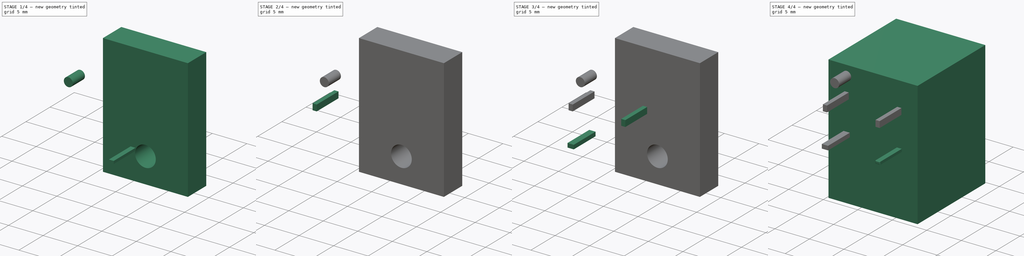
[diagram: build sequence overview — one tinted view per stage of 4, left to right]
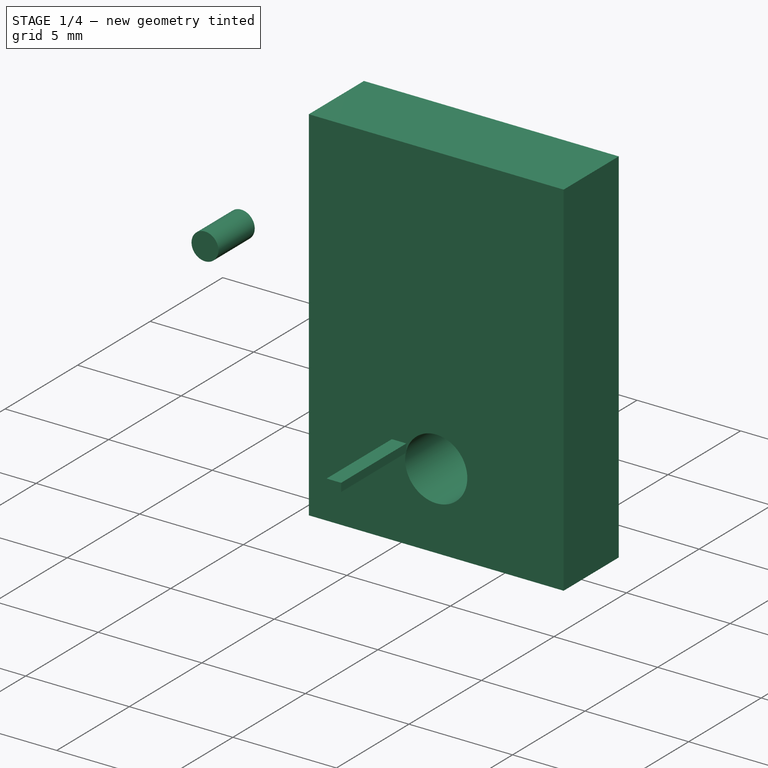
[diagram: stage 1 of 4 — iso view after this stage's code; geometry added in this stage tinted green]
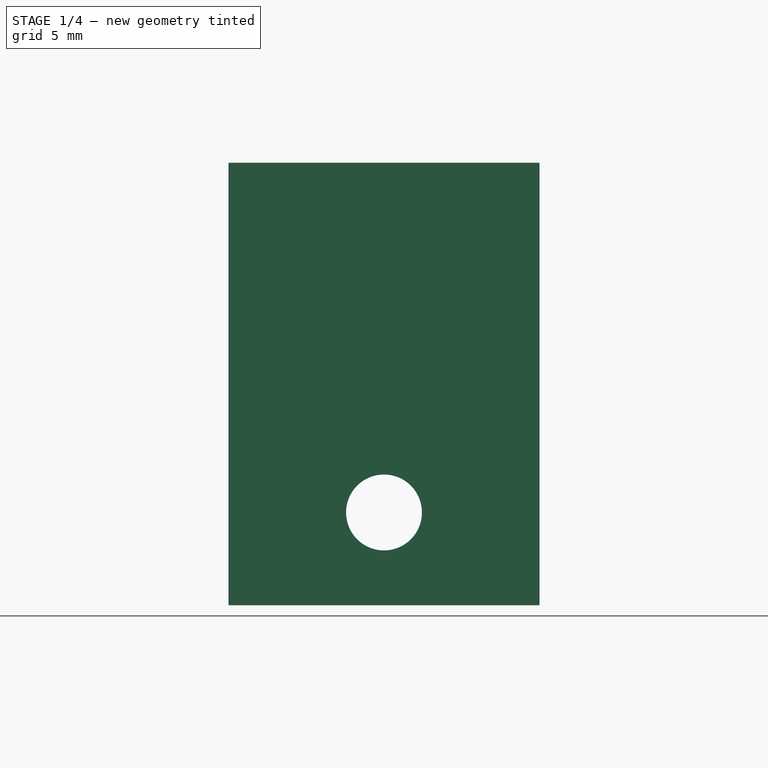
[diagram: stage 1 of 4 — front view after this stage's code; geometry added in this stage tinted green]
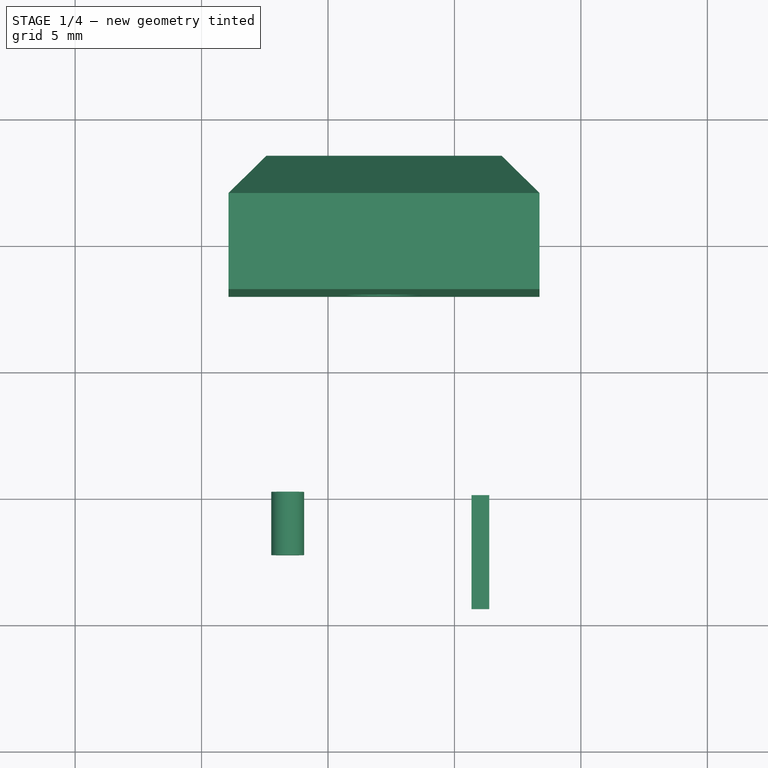
[diagram: stage 1 of 4 — top view after this stage's code; geometry added in this stage tinted green]
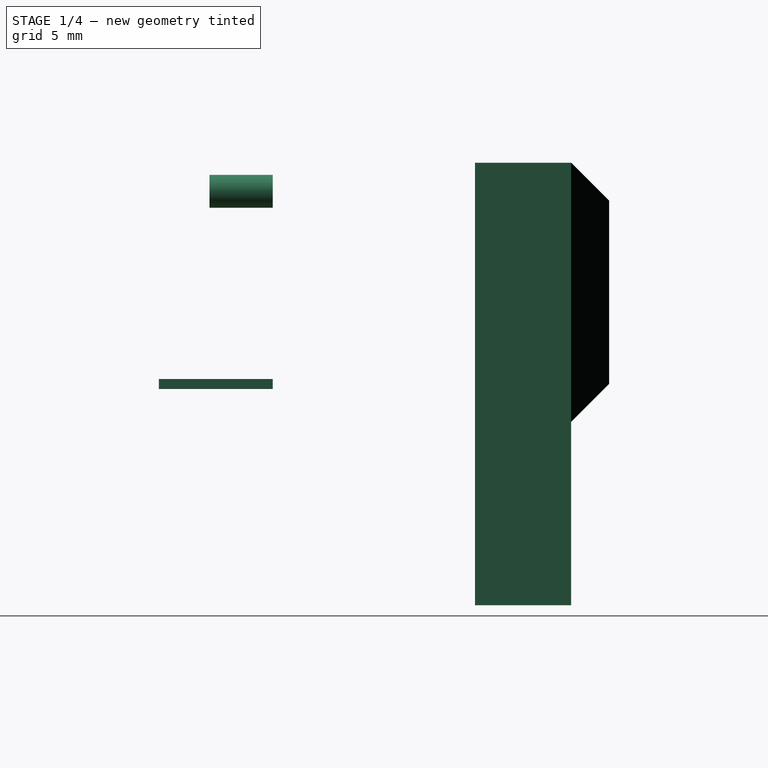
[diagram: stage 1 of 4 — right view after this stage's code; geometry added in this stage tinted green]
FCSTD DOCUMENT  (FreeCAD 0.16R6712 (Git))
Label: digitast
License: All rights reserved
LicenseURL: http://en.wikipedia.org/wiki/All_rights_reserved
objects: Part::FeaturePython×7, Sketcher::SketchObject×4, Part::Extrusion×4, Part::Feature×3, App::DocumentObjectGroup×2, Part::Fillet×1, Part::MultiFuse×1, Part::Part2DObjectPython×1, PartDesign::Pocket×1
note: 23 computed .brp shape members not serialized (recipe doc carries the construction recipe); baked Part::Feature solids carry a one-line shape summary decoded from their .brp

FEATURE [Part::Feature] Part__Feature  label="User Library-digitast_with_Red_led"
  shape: bbox 12.3 x 5.3 x 17.5 mm, 12 faces (baked)
FEATURE [Part::Feature] Part__Feature001  label="User Library-digitast_with_Red_led001"
  shape: bbox 12.3 x 10.5 x 17.5 mm, 12 faces (baked)
FEATURE [Sketcher::SketchObject] Sketch
  ExternalGeometry = -> [Part__Feature001]
  Placement = pos=(0,0,0) rot=(1,0,0;1.5708rad)
  sketch-geometry (6):
    g0: LineSegment [constr] StartX=-8.93554 StartY=4.00865 StartZ=0 EndX=3.36446 EndY=4.00865 EndZ=0
    g1: LineSegment [constr] StartX=1.02446 StartY=-3.61135 StartZ=0 EndX=1.02446 EndY=4.00865 EndZ=0
    g2: LineSegment StartX=0.674465 StartY=4.20865 StartZ=0 EndX=1.37446 EndY=4.20865 EndZ=0
    g3: LineSegment StartX=1.37446 StartY=4.20865 StartZ=0 EndX=1.37446 EndY=3.80865 EndZ=0
    g4: LineSegment StartX=1.37446 StartY=3.80865 StartZ=0 EndX=0.674465 EndY=3.80865 EndZ=0
    g5: LineSegment StartX=0.674465 StartY=3.80865 StartZ=0 EndX=0.674465 EndY=4.20865 EndZ=0
  constraints (20):
    c: Horizontal(g0)
    c: Symmetric(g-9,g-9,g0)
    c: Coincident(g1,g-4)
    c: PointOnObject(g1,g0)
    c: Vertical(g1)
    c: PointOnObject(g0,g-9)
    c: PointOnObject(g0,g-10)
    c: Coincident(g2,g3)
    c: Coincident(g3,g4)
    c: Coincident(g4,g5)
    c: Coincident(g5,g2)
    c: Horizontal(g2)
    c: Horizontal(g4)
    c: Vertical(g3)
    c: Vertical(g5)
    c: DistanceX(g2,g2) = 0.7
    c: DistanceY(g3,g3) = 0.4
    c: Symmetric(g3,g2,g0)
    c: Symmetric(g3,g4,g1)
    c: DistanceX(g-6,g-4) = 7.62
FEATURE [Part::Extrusion] Extrude
  Base = -> Sketch
  Dir = (0,-1,0)
  Solid = true
FEATURE [Part::Part2DObjectPython] Circle  # Draft 2D object (typed FeaturePython)
  FirstAngle = 0
  LastAngle = 0
  MakeFace = false
  MapMode = -1
  Placement = pos=(1.02446,0,-3.61135) rot=(1,0,0;1.5708rad)
  Radius = 0.65
FEATURE [Part::Extrusion] Extrude003  label="PlasticPinPcbHole"
  Base = -> Circle
  Dir = (0,-1,0)
  Solid = true
FEATURE [Part::FeaturePython] Clone006  label="PlasticPinPcbHole001"  # Draft clone (typed FeaturePython)
  AttacherType = Attacher::AttachEngine3D
  Fuse = false
  MapMode = -1
  Objects = -> [Extrude003]
  Placement = pos=(-7.62,0,15.24) rot=(0,0,1;0rad)
  Scale = (1,1,1)
FEATURE [App::DocumentObjectGroup] Group001  label="PcbHoles"
  Group = -> [Extrude002,Clone003,Clone004,Clone005,Extrude003,Clone006]
FEATURE [Sketcher::SketchObject] Sketch004
  ExternalGeometry = -> [Part__Feature]
  Placement = pos=(0,11.8,0) rot=(0,0.707107,0.707107;3.14159rad)
  Support = -> Part__Feature [Face1]
  sketch-geometry (1):
    g0: Circle CenterX=2.78554 CenterY=-1.07135 CenterZ=0 NormalX=0 NormalY=0 NormalZ=1 Radius=1.5
  constraints (2):
    c: Coincident(g-3,g0)
    c: PointOnObject(g-3,g0)
FEATURE [PartDesign::Pocket] Pocket
  Length = 5
  Sketch = -> Sketch004
  Type = 1
FEATURE [Part::Feature] Revolution001  label="Led"
  Placement = pos=(-2.78554,7.3,-1.07135) rot=(0,1,0;1.5708rad)
  shape: bbox 3.4 x 4.5 x 3.4 mm, 5 faces (baked)
FEATURE [App::DocumentObjectGroup] Group  label="Digitast"
  Group = -> [Part__Feature,Part__Feature001,Fusion,Sketch003,Pocket,Revolution001]
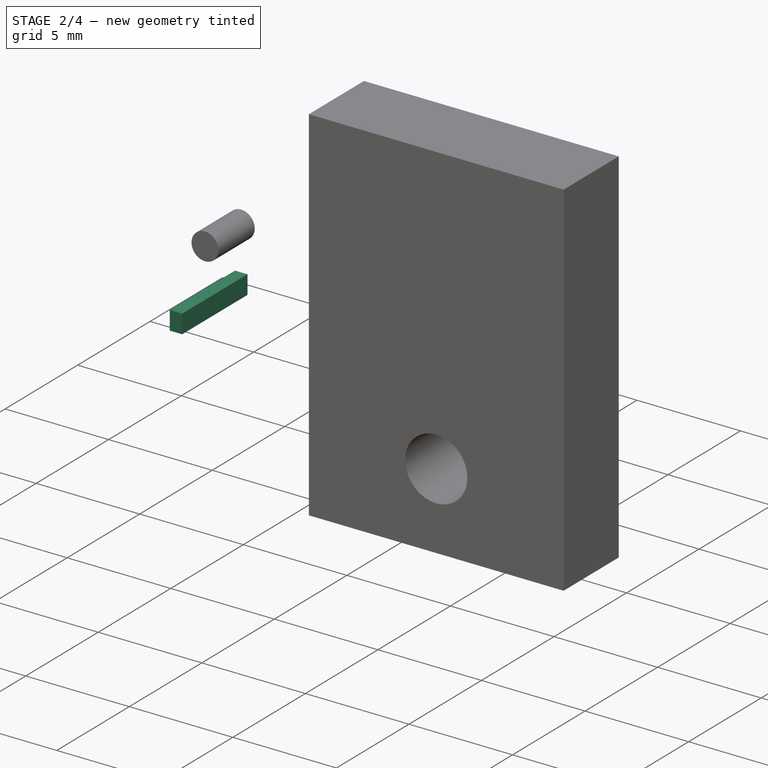
[diagram: stage 2 of 4 — iso view after this stage's code; geometry added in this stage tinted green]
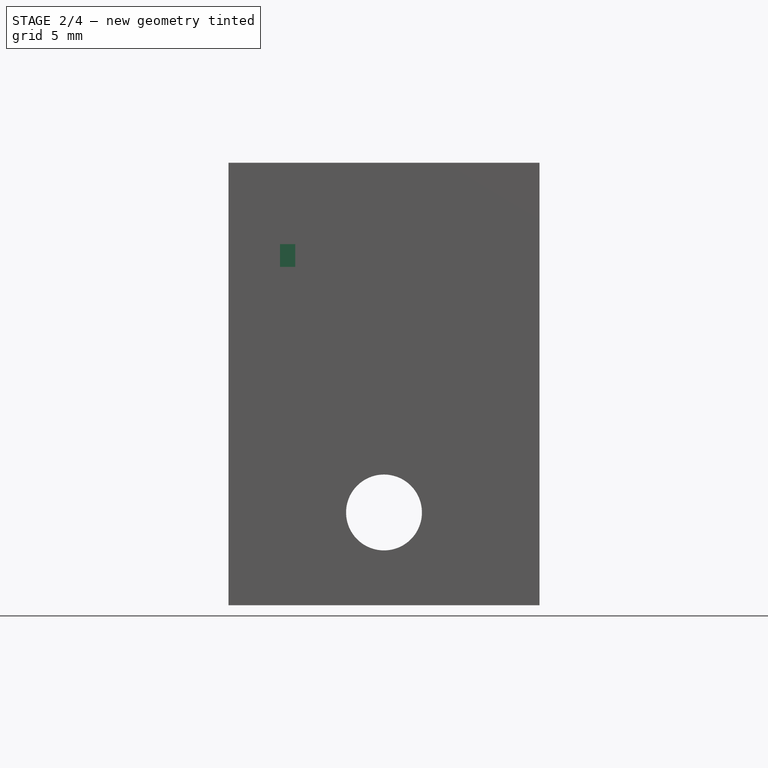
[diagram: stage 2 of 4 — front view after this stage's code; geometry added in this stage tinted green]
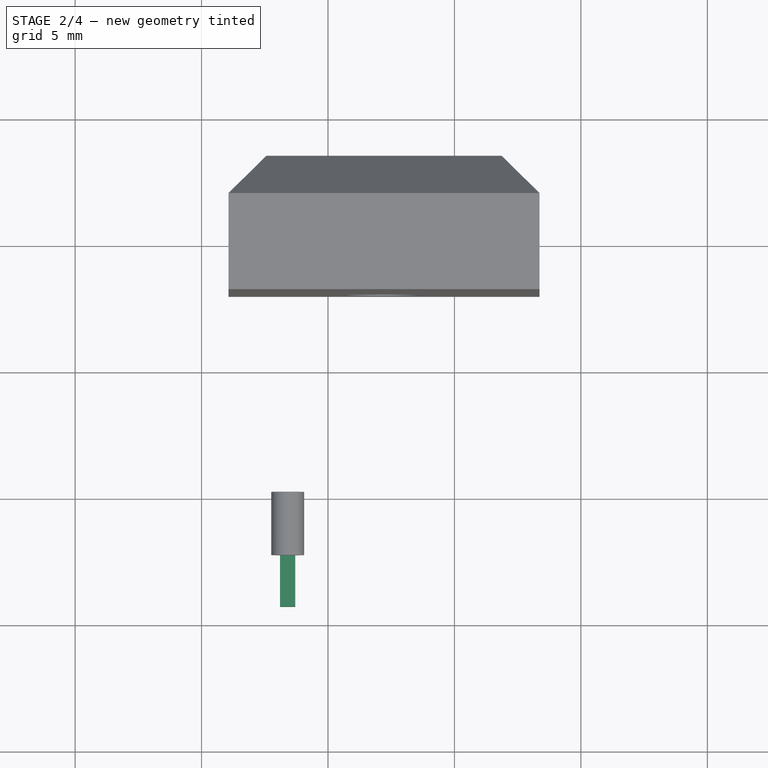
[diagram: stage 2 of 4 — top view after this stage's code; geometry added in this stage tinted green]
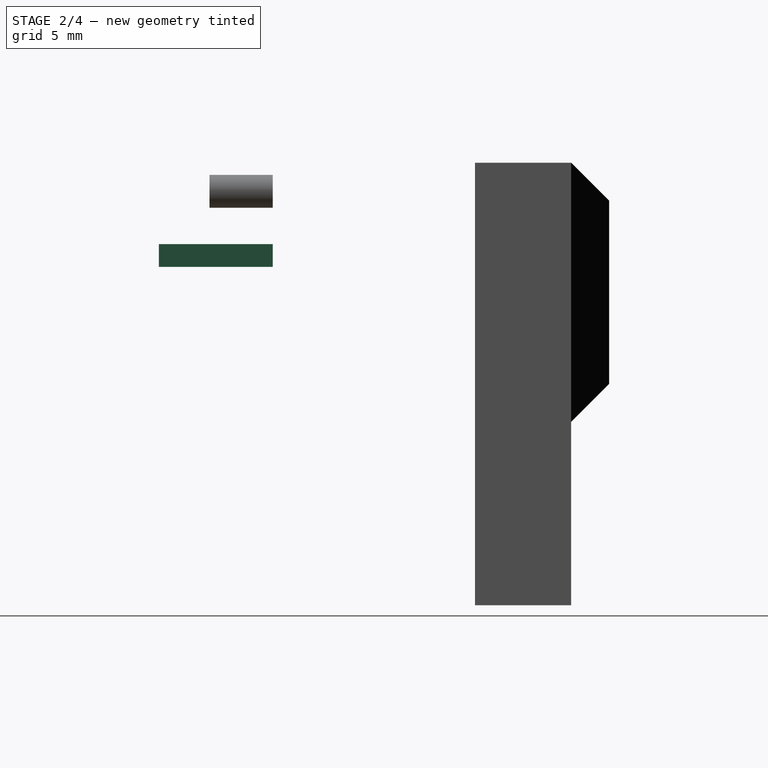
[diagram: stage 2 of 4 — right view after this stage's code; geometry added in this stage tinted green]
FEATURE [Part::Fillet] Fillet
  Base = -> Extrude
  Edges = 4 edges r=0.1: [Edge4,Edge7,Edge10,Edge12]
FEATURE [Sketcher::SketchObject] Sketch003
  ExternalGeometry = -> [Fillet]
  Placement = pos=(0,0,0) rot=(1,0,0;1.5708rad)
  sketch-geometry (4):
    g0: LineSegment StartX=0.574465 StartY=4.30865 StartZ=0 EndX=1.47446 EndY=4.30865 EndZ=0
    g1: LineSegment StartX=1.47446 StartY=4.30865 StartZ=0 EndX=1.47446 EndY=3.70865 EndZ=0
    g2: LineSegment StartX=1.47446 StartY=3.70865 StartZ=0 EndX=0.574465 EndY=3.70865 EndZ=0
    g3: LineSegment StartX=0.574465 StartY=3.70865 StartZ=0 EndX=0.574465 EndY=4.30865 EndZ=0
  constraints (12):
    c: Coincident(g0,g1)
    c: Coincident(g1,g2)
    c: Coincident(g2,g3)
    c: Coincident(g3,g0)
    c: Horizontal(g0)
    c: Horizontal(g2)
    c: Vertical(g1)
    c: Vertical(g3)
    c: DistanceX(g-3,g0) = 0.1
    c: DistanceY(g-3,g0) = 0.1
    c: DistanceX(g2,g-4) = 0.1
    c: DistanceY(g2,g-4) = 0.1
FEATURE [Part::Extrusion] Extrude002  label="PinPcbHole"
  Base = -> Sketch003
  Dir = (0,-1,0)
  Solid = true
FEATURE [Part::FeaturePython] Clone005  label="PinPcbHole003"  # Draft clone (typed FeaturePython)
  AttacherType = Attacher::AttachEngine3D
  Fuse = false
  MapMode = -1
  Objects = -> [Extrude002]
  Placement = pos=(-10.6042,0,10.1131) rot=(0,1,0;1.5708rad)
  Scale = (1,1,1)
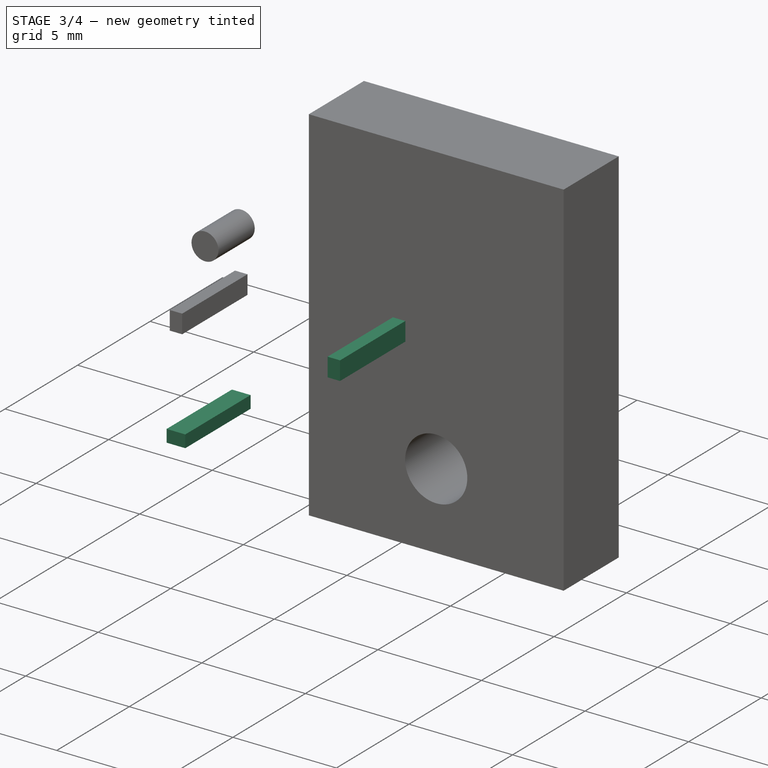
[diagram: stage 3 of 4 — iso view after this stage's code; geometry added in this stage tinted green]
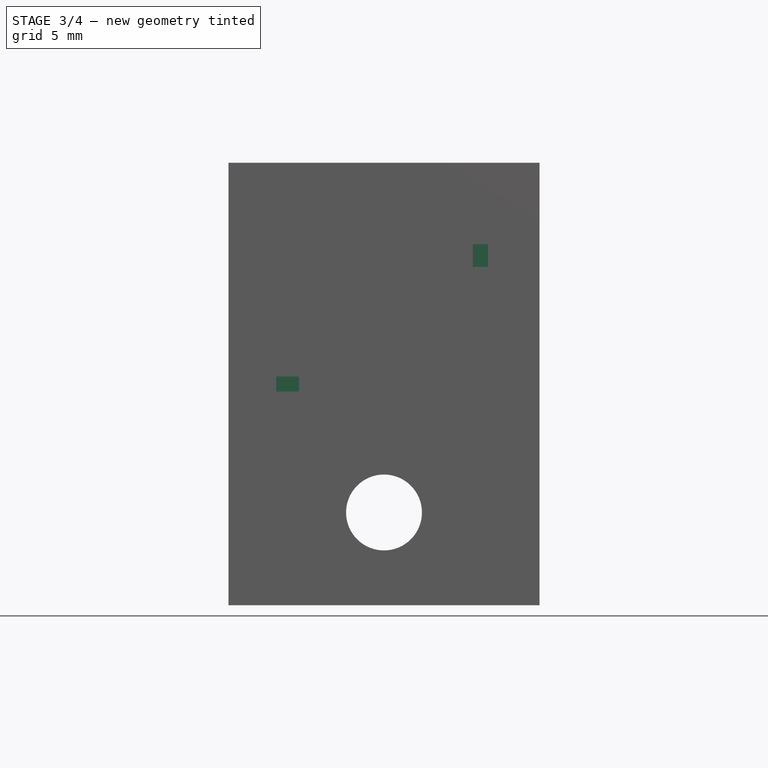
[diagram: stage 3 of 4 — front view after this stage's code; geometry added in this stage tinted green]
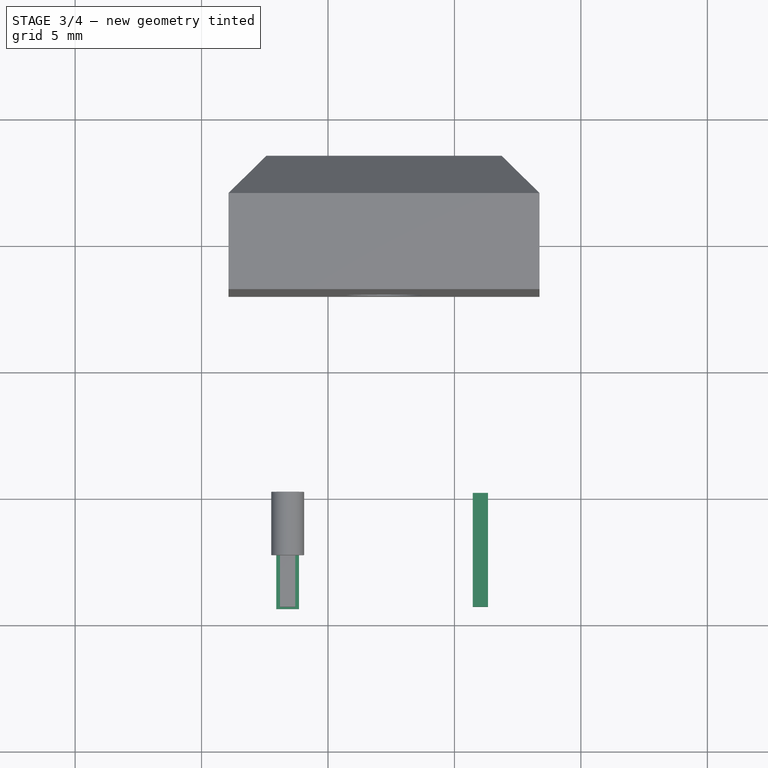
[diagram: stage 3 of 4 — top view after this stage's code; geometry added in this stage tinted green]
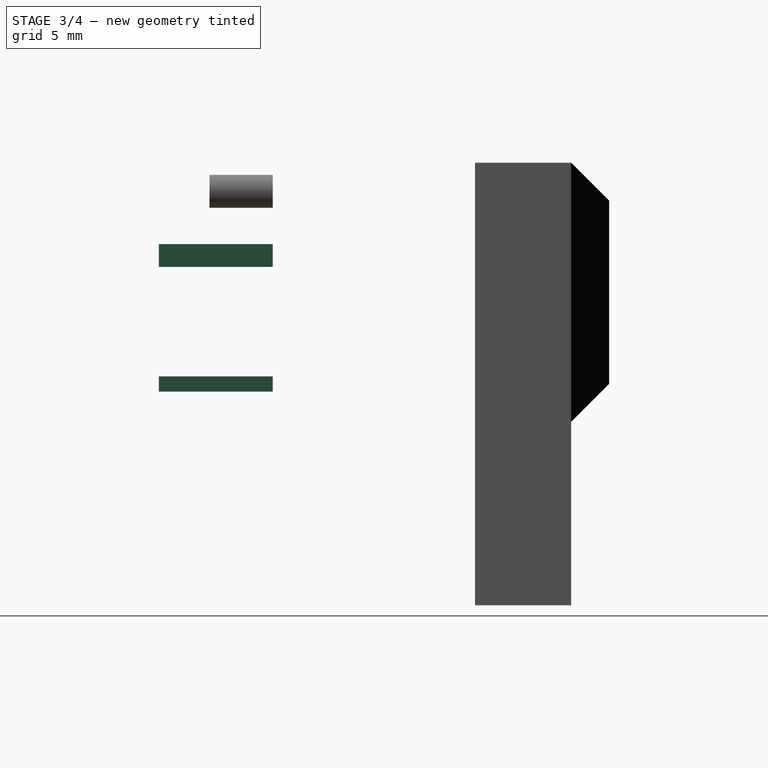
[diagram: stage 3 of 4 — right view after this stage's code; geometry added in this stage tinted green]
FEATURE [Part::FeaturePython] Clone001  label="Fillet002"  # Draft clone (typed FeaturePython)
  AttacherType = Attacher::AttachEngine3D
  Fuse = false
  MapMode = -1
  Objects = -> [Fillet]
  Placement = pos=(-2.98419,0,10.1131) rot=(0,1,0;1.5708rad)
  Scale = (1,1,1)
FEATURE [Part::FeaturePython] Clone003  label="PinPcbHole001"  # Draft clone (typed FeaturePython)
  AttacherType = Attacher::AttachEngine3D
  Fuse = false
  MapMode = -1
  Objects = -> [Extrude002]
  Placement = pos=(-7.62,0,0) rot=(0,0,1;0rad)
  Scale = (1,1,1)
FEATURE [Part::FeaturePython] Clone004  label="PinPcbHole002"  # Draft clone (typed FeaturePython)
  AttacherType = Attacher::AttachEngine3D
  Fuse = false
  MapMode = -1
  Objects = -> [Extrude002]
  Placement = pos=(-2.98419,0,10.1131) rot=(0,1,0;1.5708rad)
  Scale = (1,1,1)
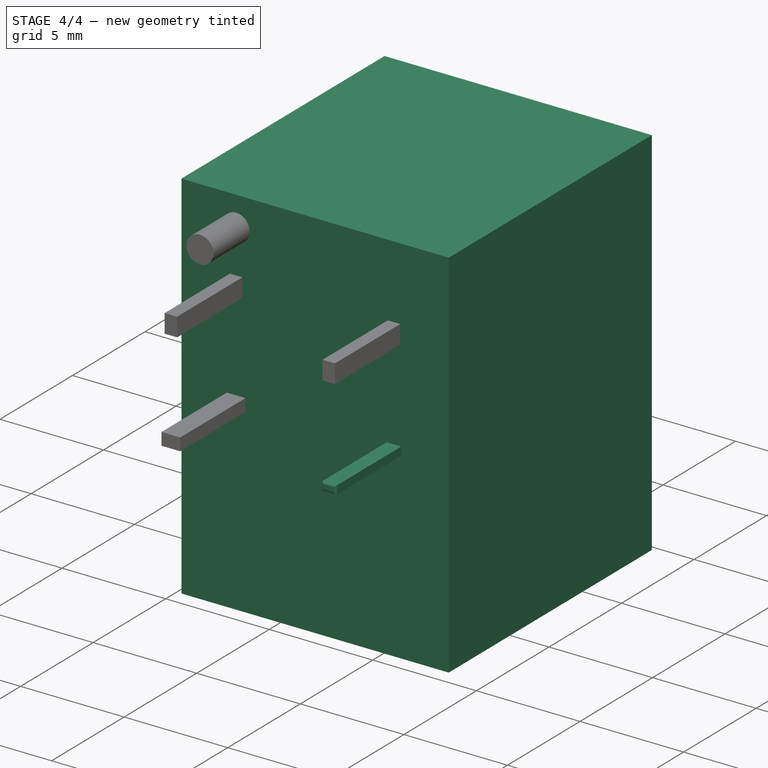
[diagram: stage 4 of 4 — iso view after this stage's code; geometry added in this stage tinted green]
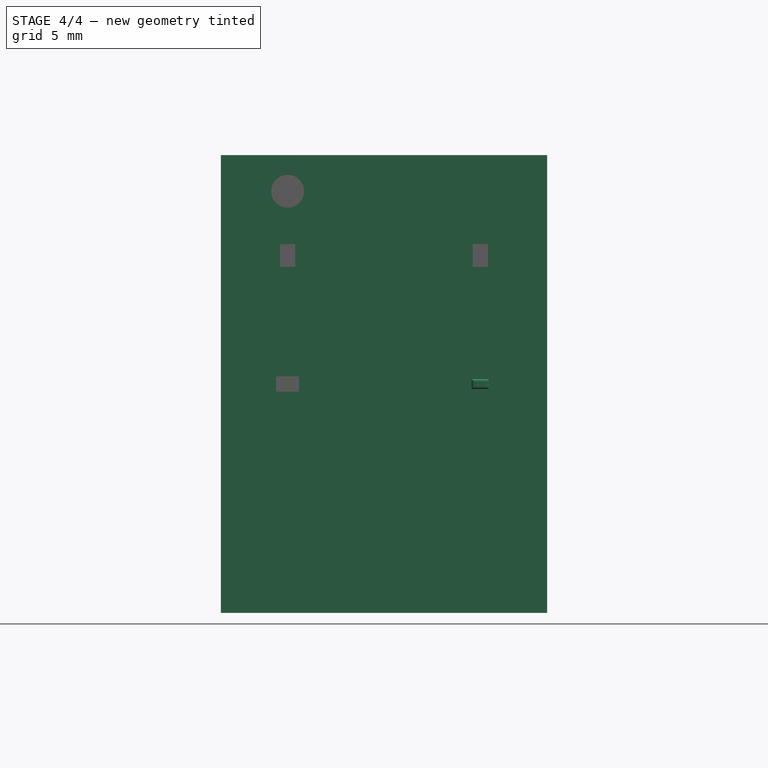
[diagram: stage 4 of 4 — front view after this stage's code; geometry added in this stage tinted green]
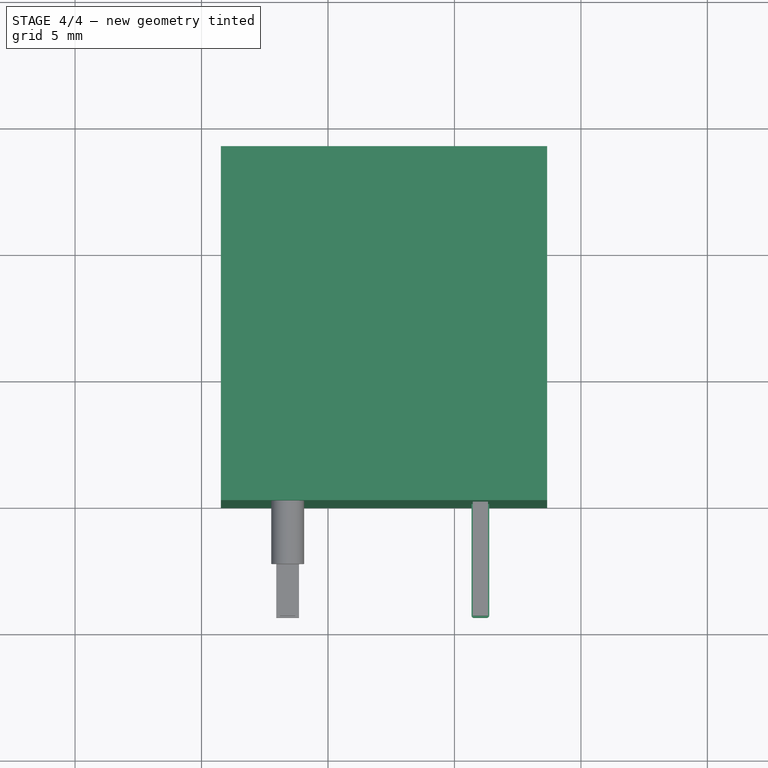
[diagram: stage 4 of 4 — top view after this stage's code; geometry added in this stage tinted green]
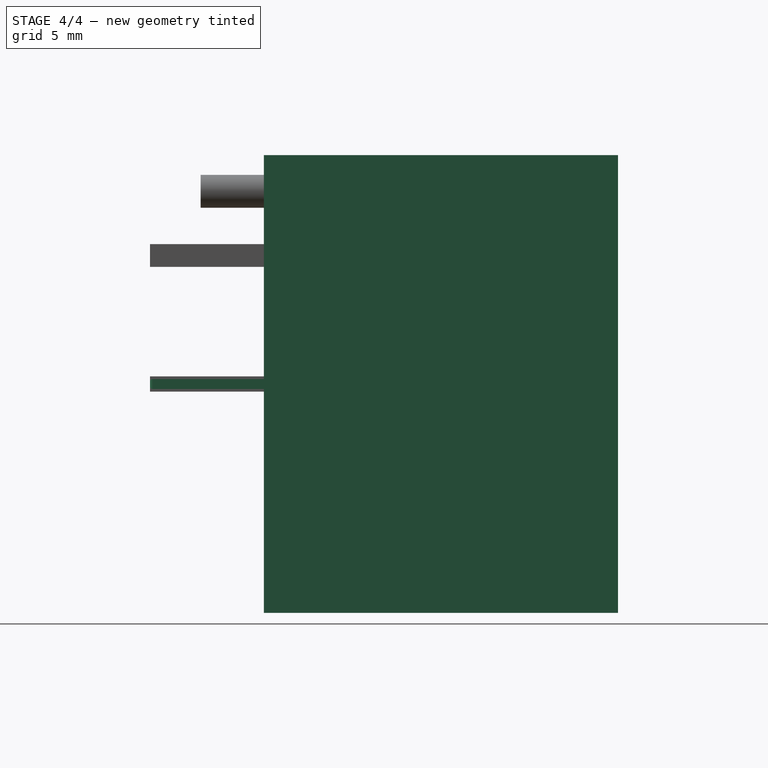
[diagram: stage 4 of 4 — right view after this stage's code; geometry added in this stage tinted green]
FEATURE [Part::FeaturePython] Clone  label="Fillet001"  # Draft clone (typed FeaturePython)
  AttacherType = Attacher::AttachEngine3D
  Fuse = false
  MapMode = -1
  Objects = -> [Fillet]
  Placement = pos=(-7.62,0,0) rot=(0,0,1;0rad)
  Scale = (1,1,1)
FEATURE [Part::FeaturePython] Clone002  label="Fillet003"  # Draft clone (typed FeaturePython)
  AttacherType = Attacher::AttachEngine3D
  Fuse = false
  MapMode = -1
  Objects = -> [Clone001]
  Placement = pos=(-10.6042,0,10.1131) rot=(0,1,0;1.5708rad)
  Scale = (1,1,1)
FEATURE [Part::MultiFuse] Fusion  label="Pins"
  Shapes = -> [Fillet,Clone001,Clone,Clone002]
FEATURE [Sketcher::SketchObject] Sketch001
  ExternalGeometry = -> [Part__Feature001]
  Placement = pos=(0,0,0) rot=(1,0,0;1.5708rad)
  sketch-geometry (4):
    g0: LineSegment StartX=-9.23554 StartY=13.0587 StartZ=0 EndX=3.66446 EndY=13.0587 EndZ=0
    g1: LineSegment StartX=3.66446 StartY=13.0587 StartZ=0 EndX=3.66446 EndY=-5.04135 EndZ=0
    g2: LineSegment StartX=3.66446 StartY=-5.04135 StartZ=0 EndX=-9.23554 EndY=-5.04135 EndZ=0
    g3: LineSegment StartX=-9.23554 StartY=-5.04135 StartZ=0 EndX=-9.23554 EndY=13.0587 EndZ=0
  constraints (12):
    c: Coincident(g0,g1)
    c: Coincident(g1,g2)
    c: Coincident(g2,g3)
    c: Coincident(g3,g0)
    c: Horizontal(g0)
    c: Horizontal(g2)
    c: Vertical(g1)
    c: Vertical(g3)
    c: DistanceX(g0,g-3) = 0.3
    c: DistanceX(g-3,g0) = 0.3
    c: DistanceY(g-3,g0) = 0.3
    c: DistanceY(g1,g-4) = 0.3
FEATURE [Part::Extrusion] Extrude001  label="DigitastFPHole"
  Base = -> Sketch001
  Dir = (0,14,0)
  Solid = true
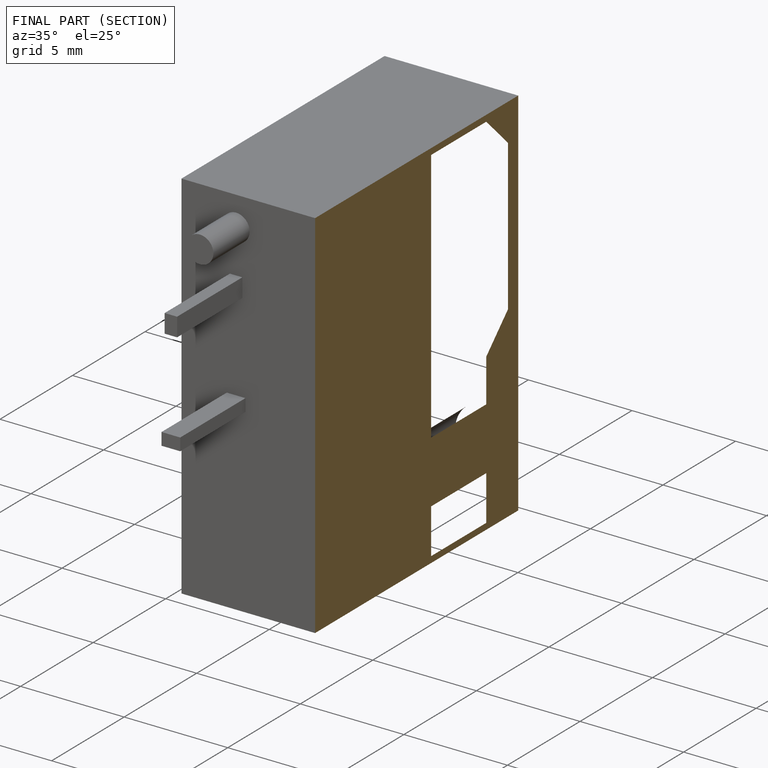
[diagram: finished part — half-section view (interior)]
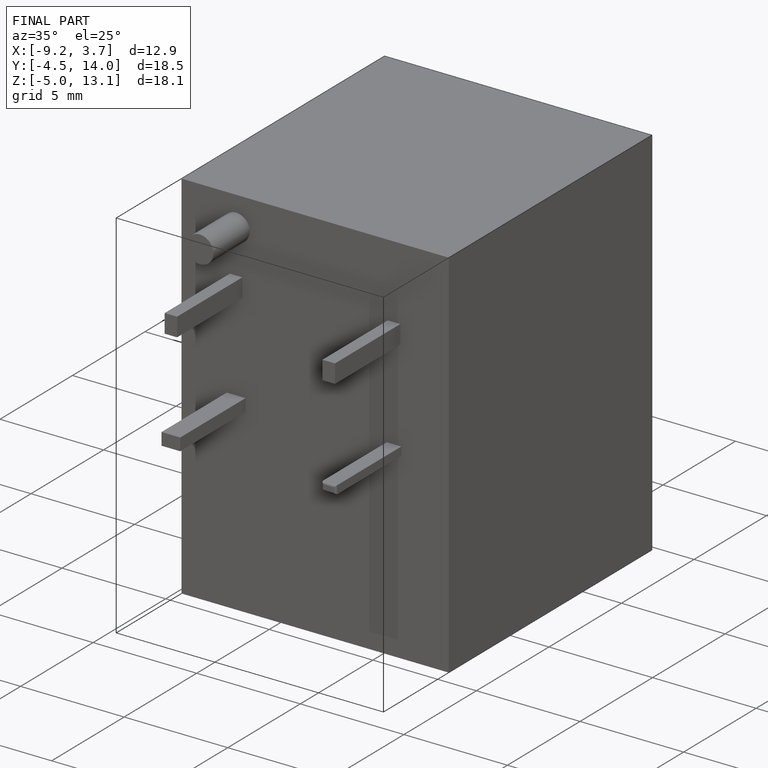
[diagram: finished part — iso view with bounding-box wireframe]
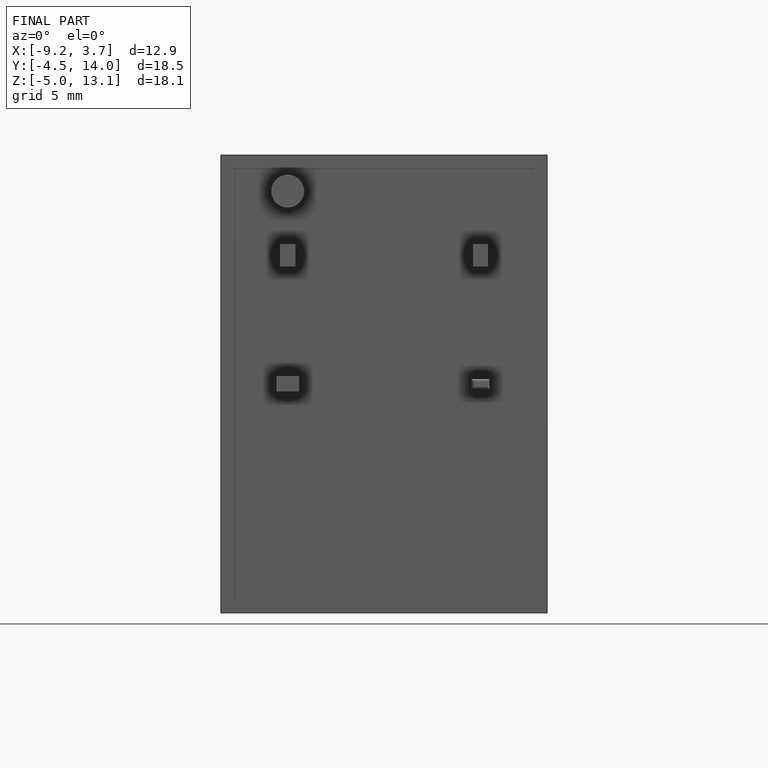
[diagram: finished part — front view with bounding-box wireframe]
